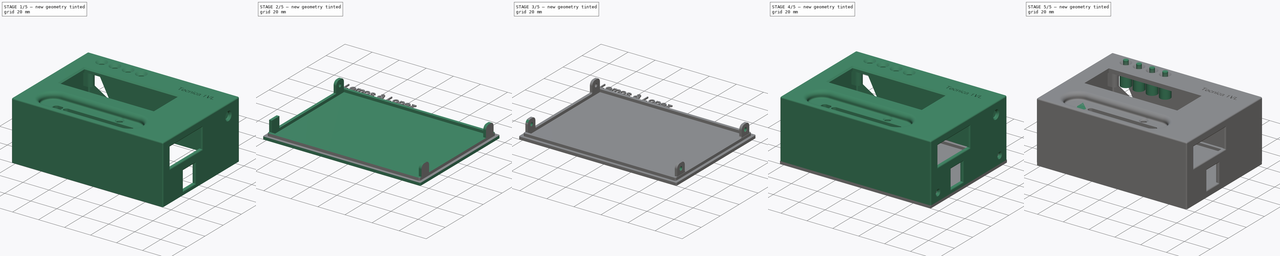
[diagram: build sequence overview — one tinted view per stage of 5, left to right]
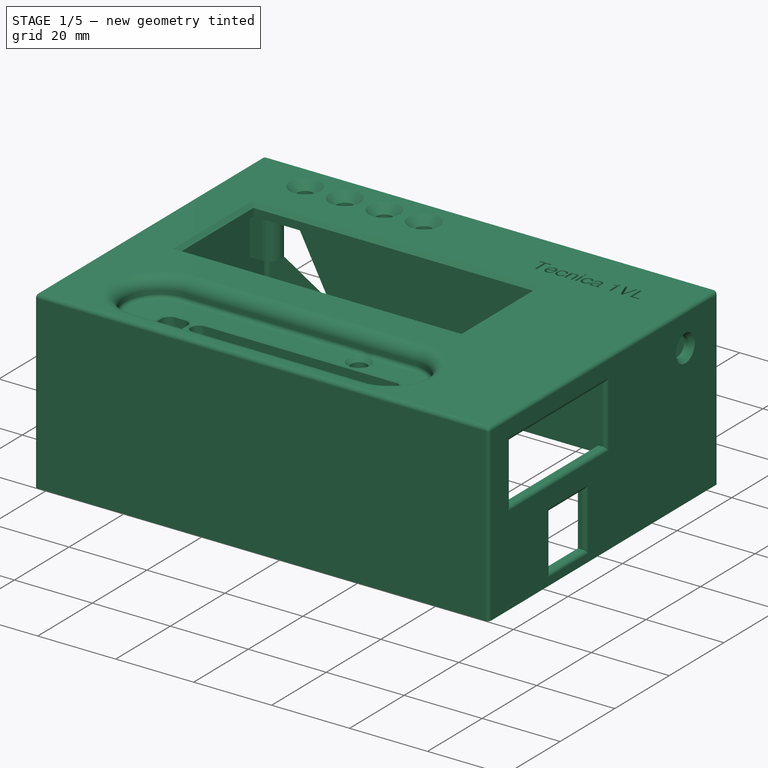
[diagram: stage 1 of 5 — iso view after this stage's code; geometry added in this stage tinted green]
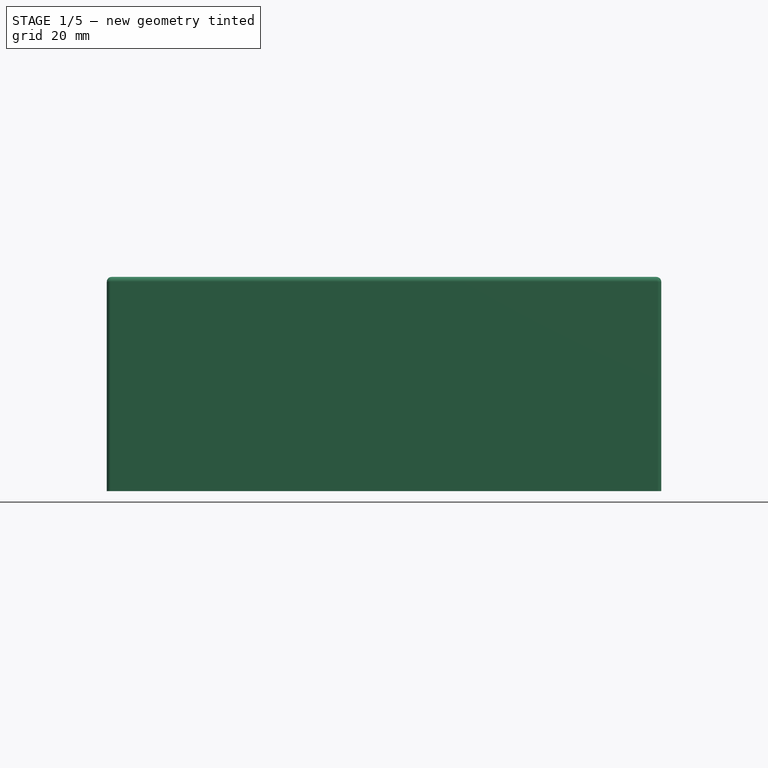
[diagram: stage 1 of 5 — front view after this stage's code; geometry added in this stage tinted green]
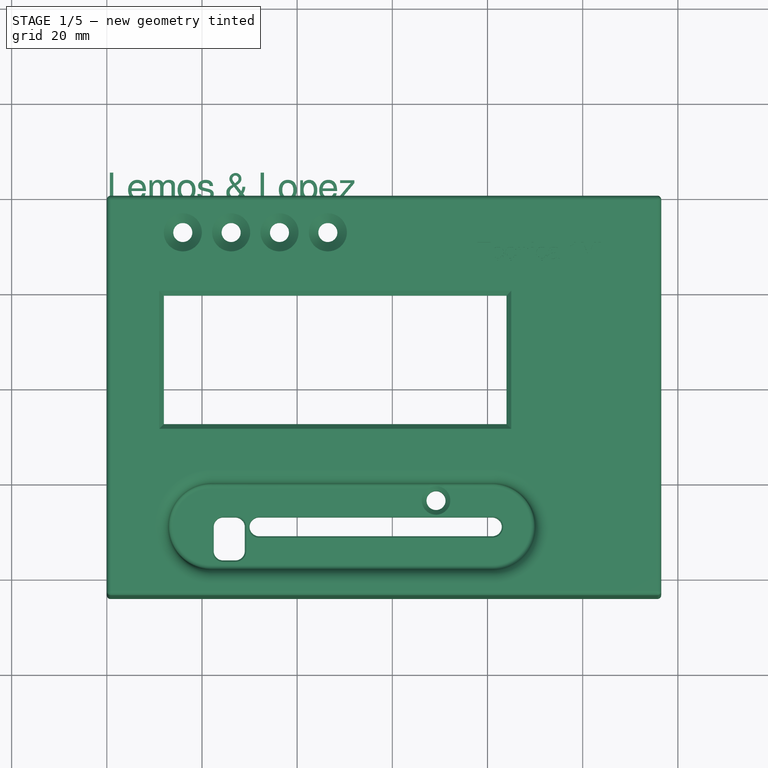
[diagram: stage 1 of 5 — top view after this stage's code; geometry added in this stage tinted green]
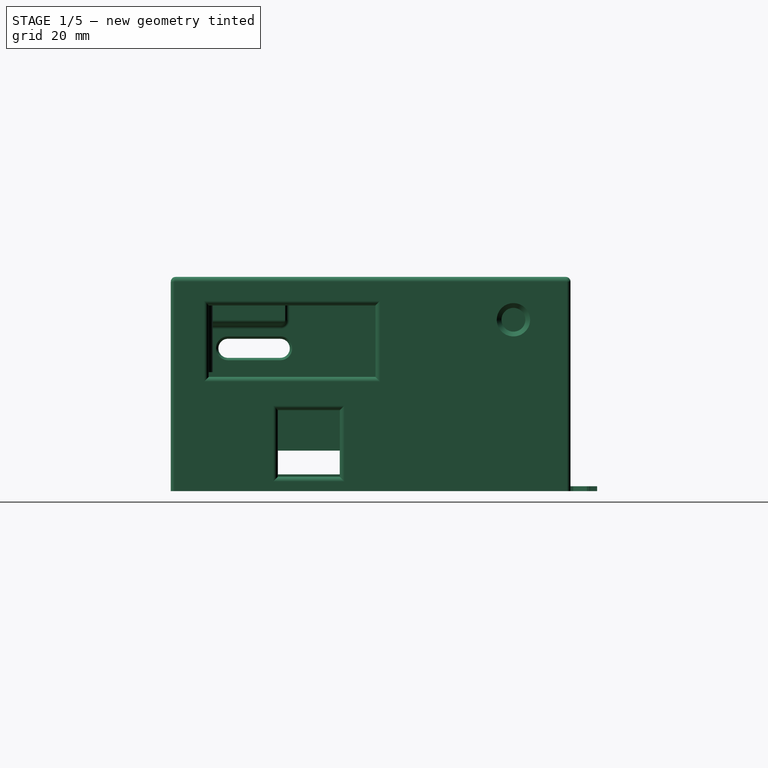
[diagram: stage 1 of 5 — right view after this stage's code; geometry added in this stage tinted green]
FCSTD DOCUMENT  (FreeCAD 0.17R7682 (Git))
Label: Modelodelgabinete5
License: All rights reserved
LicenseURL: http://en.wikipedia.org/wiki/All_rights_reserved
objects: Sketcher::SketchObject×22, PartDesign::Pocket×11, PartDesign::Pad×10, PartDesign::Chamfer×10, Part::Fillet×9, PartDesign::Fillet×8, Part::Feature×2, Part::MultiFuse×2, Part::Extrusion×2, Part::Chamfer×2, Part::Cut×2, Part::FeaturePython×1, Part::Part2DObjectPython×1, PartDesign::Body×1
note: 104 computed .brp shape members not serialized (recipe doc carries the construction recipe); baked Part::Feature solids carry a one-line shape summary decoded from their .brp

FEATURE [Part::Feature] Fusion_solid  label="Fusion (Solid)"
  shape: bbox 116.5 x 84 x 45 mm, 301 faces (baked)
FEATURE [Sketcher::SketchObject] Sketch001
  ExternalGeometry = -> [Fusion_solid]
  MapMode = 5
  Placement = pos=(0,0,40) rot=(0,0,1;0rad)
  sketch-geometry (8):
    g0: LineSegment StartX=24.46 StartY=-67.5 StartZ=0 EndX=27 EndY=-67.5 EndZ=0
    g1: LineSegment StartX=29 StartY=-69.5 StartZ=0 EndX=29 EndY=-74.58 EndZ=0
    g2: LineSegment StartX=27 StartY=-76.58 StartZ=0 EndX=24.46 EndY=-76.58 EndZ=0
    g3: LineSegment StartX=22.46 StartY=-74.58 StartZ=0 EndX=22.46 EndY=-69.5 EndZ=0
    g4: ArcOfCircle CenterX=27 CenterY=-69.5 CenterZ=0 NormalX=0 NormalY=0 NormalZ=1 Radius=2 StartAngle=0 EndAngle=1.5708
    g5: ArcOfCircle CenterX=24.46 CenterY=-69.5 CenterZ=0 NormalX=0 NormalY=0 NormalZ=1 Radius=2 StartAngle=1.5708 EndAngle=3.14159
    g6: ArcOfCircle CenterX=24.46 CenterY=-74.58 CenterZ=0 NormalX=0 NormalY=0 NormalZ=1 Radius=2 StartAngle=3.14159 EndAngle=4.71239
    g7: ArcOfCircle CenterX=27 CenterY=-74.58 CenterZ=0 NormalX=0 NormalY=0 NormalZ=1 Radius=2 StartAngle=4.71239 EndAngle=6.28319
  constraints (20):
    c: Horizontal(g0)
    c: Horizontal(g2)
    c: Vertical(g1)
    c: Vertical(g3)
    c: Tangent(g0,g4) = 1.5708
    c: Tangent(g1,g4) = 1.5708
    c: Radius(g4) = 2
    c: DistanceX(g4,g-3) = 5
    c: DistanceY(g-3,g4) = 0
    c: Tangent(g3,g5) = 1.5708
    c: Tangent(g0,g5) = 1.5708
    c: Tangent(g3,g6) = 1.5708
    c: Tangent(g2,g6) = 1.5708
    c: Tangent(g2,g7) = 1.5708
    c: Tangent(g1,g7) = 1.5708
    c: Equal(g5,g6)
    c: Equal(g6,g7)
    c: Equal(g7,g4)
    c: DistanceX(g6,g7) = 2.54
    c: DistanceY(g6,g5) = 5.08
FEATURE [PartDesign::Pocket] Pocket
  Length = 5
  Type = 0
FEATURE [PartDesign::Chamfer] Chamfer
  Base = -> Pocket [Edge134,Edge133,Edge132,Edge131]
  Size = 1
FEATURE [PartDesign::Chamfer] Chamfer001
  Base = -> Chamfer [Edge300,Edge296,Edge298,Edge301,Edge513,Edge512,Edge504,Edge315,Edge319,Edge320,Edge323,Edge324,Edge325,Edge316,Edge326]
  Size = 1
FEATURE [PartDesign::Fillet] Fillet
  Base = -> Chamfer001 [Edge49]
  Radius = 1
FEATURE [PartDesign::Chamfer] Chamfer002
  Base = -> Fillet [Edge288,Edge287,Edge286,Edge285]
  Size = 1
FEATURE [Sketcher::SketchObject] Sketch004
  ExternalGeometry = -> [Chamfer002]
  MapMode = 5
  Placement = pos=(0,0,0) rot=(0.57735,-0.57735,-0.57735;2.0944rad)
  Support = -> [Chamfer002]
  sketch-geometry (2):
    g0: LineSegment [constr] StartX=51 StartY=6 StartZ=0 EndX=31.832 EndY=6 EndZ=0
    g1: Circle CenterX=48.5 CenterY=6 CenterZ=0 NormalX=0 NormalY=0 NormalZ=1 Radius=2.5
  constraints (6):
    c: Coincident(g0,g-3)
    c: Horizontal(g0)
    c: DistanceX(g0) = -19.168
    c: PointOnObject(g1,g0)
    c: Radius(g1) = 2.5
    c: DistanceX(g1,g0) = 2.5
FEATURE [PartDesign::Pocket] Pocket001
  Length = 6
  Profile = -> Sketch004
  Type = 0
FEATURE [Sketcher::SketchObject] Sketch005
  ExternalGeometry = -> [Pocket001]
  MapMode = 5
  Placement = pos=(0,0,0) rot=(0.57735,-0.57735,-0.57735;2.0944rad)
  Support = -> [Pocket001]
  sketch-geometry (4):
    g0: LineSegment StartX=48.55 StartY=8.4995 StartZ=0 EndX=52.1442 EndY=8.4995 EndZ=0
    g1: LineSegment StartX=52.1442 StartY=8.4995 StartZ=0 EndX=52.1442 EndY=3.5005 EndZ=0
    g2: LineSegment StartX=52.1442 StartY=3.5005 StartZ=0 EndX=48.55 EndY=3.5005 EndZ=0
    g3: LineSegment StartX=48.55 StartY=3.5005 StartZ=0 EndX=48.55 EndY=8.4995 EndZ=0
  constraints (11):
    c: Coincident(g0,g1)
    c: Coincident(g1,g2)
    c: Coincident(g2,g3)
    c: Coincident(g3,g0)
    c: Horizontal(g0)
    c: Horizontal(g2)
    c: Vertical(g1)
    c: Vertical(g3)
    c: Coincident(g0,g-3)
    c: Coincident(g2,g-3)
    c: DistanceX(g2,g2) = 3.59415
FEATURE [PartDesign::Pocket] Pocket002
  Length = 5
  Profile = -> Sketch005
  Type = 0
FEATURE [Part::Fillet] Fillet001
  Base = -> Pocket002
  Edges = 1 edges r=0.5: [Edge476]
FEATURE [Sketcher::SketchObject] Sketch006
  ExternalGeometry = -> [Fillet001]
  MapMode = 5
  Placement = pos=(114.5,0,0) rot=(0.57735,-0.57735,-0.57735;2.0944rad)
  Support = -> [Fillet001]
  sketch-geometry (1):
    g0: Circle CenterX=12 CenterY=36 CenterZ=0 NormalX=0 NormalY=0 NormalZ=1 Radius=2.5
  constraints (3):
    c: DistanceY(g0,g-3) = 5
    c: Radius(g0) = 2.5
    c: DistanceX(g-1,g0) = 12
FEATURE [PartDesign::Pocket] Pocket003
  Length = 5
  Profile = -> Sketch006
  Type = 0
FEATURE [PartDesign::Chamfer] Chamfer003  label="Caja"
  Base = -> Pocket003 [Edge255]
  Size = 1
FEATURE [Part::Part2DObjectPython] ShapeString  # Draft 2D object (typed FeaturePython)
  FontFile = <path>
  Size = 3
  String = Lemos & Lopez
  Tracking = 0
FEATURE [Part::Extrusion] Extrude001
  Base = -> ShapeString
  Dir = (0,0,1)
  Solid = true
FEATURE [PartDesign::Body] Body
  BaseFeature = -> Extrude001
  Origin = -> BodyOrigin
  Placement = pos=(32,-13,0.7) rot=(0,0,1;0rad)
  Tip = -> Extrude001
note: 1 file-system path scrubbed to <path> (originals preserved in the JSON sidecar)
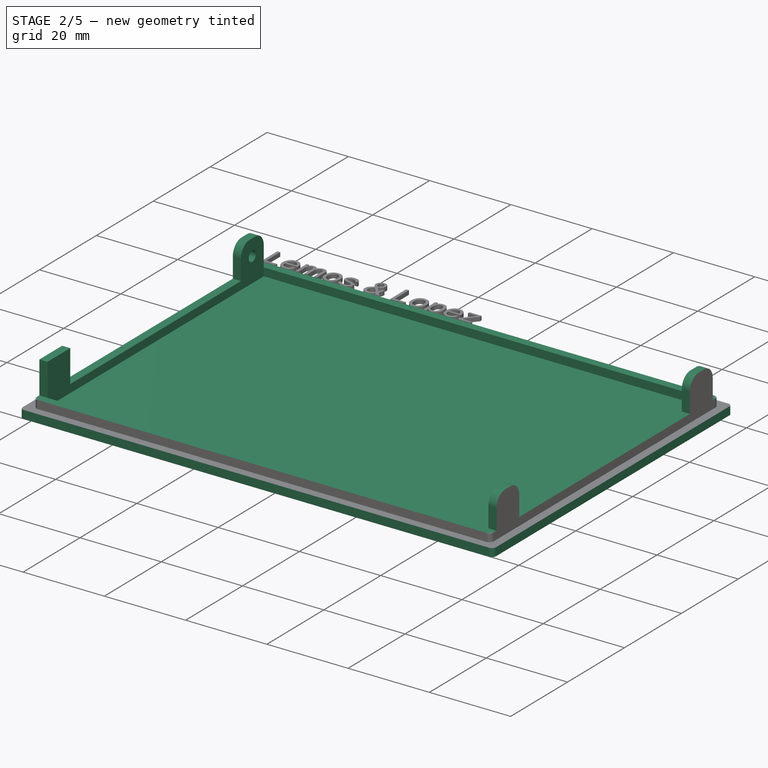
[diagram: stage 2 of 5 — iso view after this stage's code; geometry added in this stage tinted green]
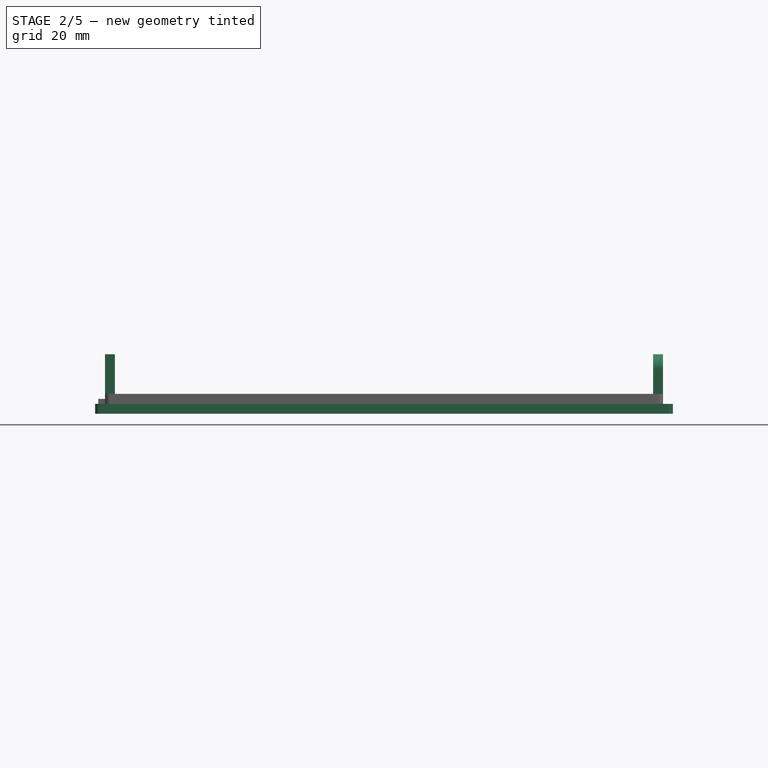
[diagram: stage 2 of 5 — front view after this stage's code; geometry added in this stage tinted green]
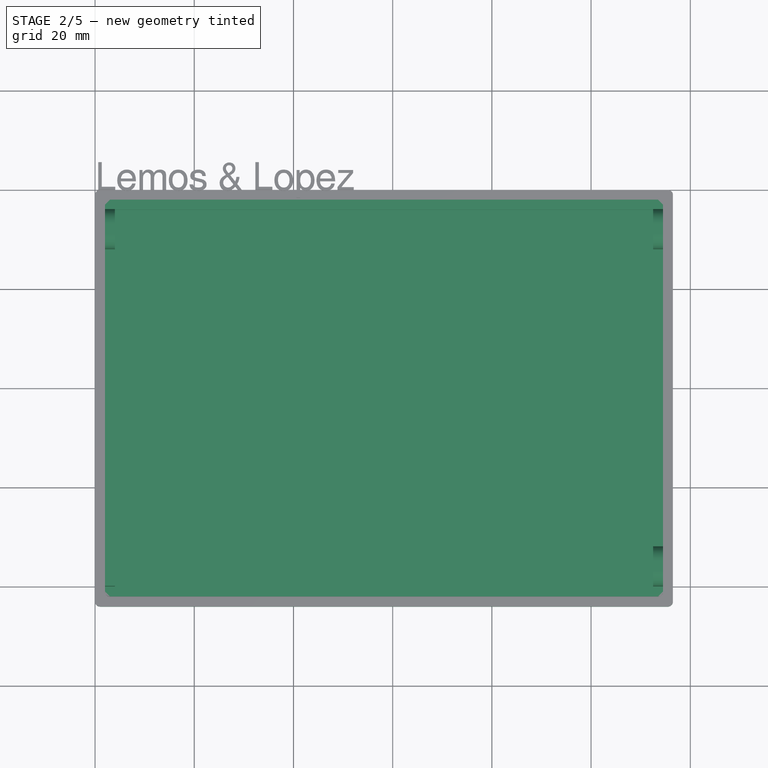
[diagram: stage 2 of 5 — top view after this stage's code; geometry added in this stage tinted green]
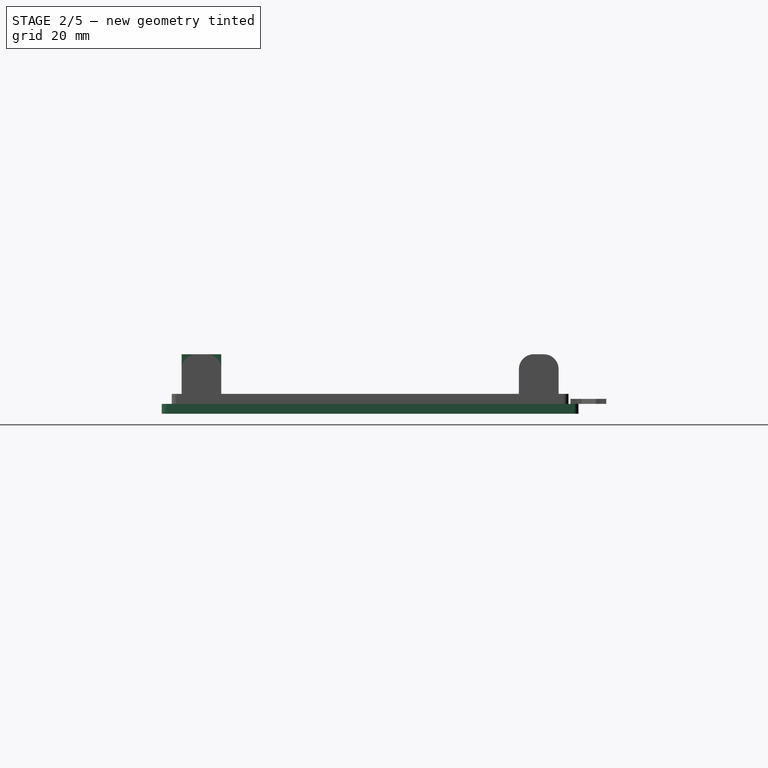
[diagram: stage 2 of 5 — right view after this stage's code; geometry added in this stage tinted green]
FEATURE [Sketcher::SketchObject] Sketch007
  ExternalGeometry = -> [Chamfer003]
  Placement = pos=(0,0,0) rot=(1,0,0;3.14159rad)
  sketch-geometry (4):
    g0: LineSegment StartX=0 StartY=0 StartZ=0 EndX=116.5 EndY=0 EndZ=0
    g1: LineSegment StartX=116.5 StartY=0 StartZ=0 EndX=116.5 EndY=84 EndZ=0
    g2: LineSegment StartX=116.5 StartY=84 StartZ=0 EndX=0 EndY=84 EndZ=0
    g3: LineSegment StartX=0 StartY=84 StartZ=0 EndX=0 EndY=0 EndZ=0
  constraints (11):
    c: Coincident(g0,g1)
    c: Coincident(g1,g2)
    c: Coincident(g2,g3)
    c: Coincident(g3,g0)
    c: Horizontal(g0)
    c: Horizontal(g2)
    c: Vertical(g1)
    c: Vertical(g3)
    c: Coincident(g0,g-1)
    c: PointOnObject(g-3,g2)
    c: PointOnObject(g-4,g1)
FEATURE [PartDesign::Pad] Pad002
  Length = 2
  Length2 = 100
  Placement = pos=(0,0,0) rot=(1,0,0;3.14159rad)
  Profile = -> Sketch007
  Type = 0
FEATURE [Sketcher::SketchObject] Sketch008
  ExternalGeometry = -> [Pad002]
  MapMode = 5
  Support = -> [Pad002]
  sketch-geometry (4):
    g0: LineSegment StartX=2 StartY=-2 StartZ=0 EndX=114.5 EndY=-2 EndZ=0
    g1: LineSegment StartX=114.5 StartY=-2 StartZ=0 EndX=114.5 EndY=-82 EndZ=0
    g2: LineSegment StartX=114.5 StartY=-82 StartZ=0 EndX=2 EndY=-82 EndZ=0
    g3: LineSegment StartX=2 StartY=-82 StartZ=0 EndX=2 EndY=-2 EndZ=0
  constraints (12):
    c: Coincident(g0,g1)
    c: Coincident(g1,g2)
    c: Coincident(g2,g3)
    c: Coincident(g3,g0)
    c: Horizontal(g0)
    c: Horizontal(g2)
    c: Vertical(g1)
    c: Vertical(g3)
    c: DistanceX(g-1,g0) = 2
    c: DistanceY(g0,g-1) = 2
    c: DistanceX(g1,g-3) = 2
    c: DistanceY(g-3,g1) = 2
FEATURE [PartDesign::Pad] Pad003
  Length = 2
  Length2 = 100
  Placement = pos=(0,0,0) rot=(1,0,0;3.14159rad)
  Profile = -> Sketch008
  Type = 0
FEATURE [Sketcher::SketchObject] Sketch009
  ExternalGeometry = -> [Pad003]
  MapMode = 5
  Placement = pos=(0,0,2) rot=(0,0,1;0rad)
  Support = -> [Pad003]
  sketch-geometry (4):
    g0: LineSegment StartX=4 StartY=-4 StartZ=0 EndX=112.5 EndY=-4 EndZ=0
    g1: LineSegment StartX=112.5 StartY=-4 StartZ=0 EndX=112.5 EndY=-80 EndZ=0
    g2: LineSegment StartX=112.5 StartY=-80 StartZ=0 EndX=4 EndY=-80 EndZ=0
    g3: LineSegment StartX=4 StartY=-80 StartZ=0 EndX=4 EndY=-4 EndZ=0
  constraints (12):
    c: Coincident(g0,g1)
    c: Coincident(g1,g2)
    c: Coincident(g2,g3)
    c: Coincident(g3,g0)
    c: Horizontal(g0)
    c: Horizontal(g2)
    c: Vertical(g1)
    c: Vertical(g3)
    c: DistanceX(g1,g-3) = 2
    c: DistanceY(g-3,g1) = 2
    c: DistanceX(g-1,g0) = 4
    c: DistanceY(g0,g-1) = 4
FEATURE [PartDesign::Pocket] Pocket004
  Length = 2
  Placement = pos=(0,0,0) rot=(1,0,0;3.14159rad)
  Profile = -> Sketch009
  Type = 0
FEATURE [Part::Fillet] Fillet008
  Base = -> Pocket004
  Edges = 8 edges r=1: [Edge1,Edge2,Edge5,Edge8,Edge17,Edge19,Edge20,Edge22]
FEATURE [Sketcher::SketchObject] Sketch010
  ExternalGeometry = -> [Fillet008]
  MapMode = 5
  Placement = pos=(0,0,2) rot=(0,0,1;0rad)
  Support = -> [Fillet008]
  sketch-geometry (4):
    g0: LineSegment StartX=2 StartY=-4 StartZ=0 EndX=4 EndY=-4 EndZ=0
    g1: LineSegment StartX=4 StartY=-4 StartZ=0 EndX=4 EndY=-12 EndZ=0
    g2: LineSegment StartX=4 StartY=-12 StartZ=0 EndX=2 EndY=-12 EndZ=0
    g3: LineSegment StartX=2 StartY=-12 StartZ=0 EndX=2 EndY=-4 EndZ=0
  constraints (11):
    c: Coincident(g0,g1)
    c: Coincident(g1,g2)
    c: Coincident(g2,g3)
    c: Coincident(g3,g0)
    c: Horizontal(g0)
    c: Horizontal(g2)
    c: Vertical(g1)
    c: Vertical(g3)
    c: Coincident(g0,g-3)
    c: DistanceY(g3,g3) = 8
    c: DistanceX(g0,g0) = 2
FEATURE [PartDesign::Pad] Pad004
  Length = 8
  Length2 = 100
  Profile = -> Sketch010
  Type = 0
FEATURE [PartDesign::Fillet] Fillet010
  Base = -> Pad004 [Edge1,Edge3]
  Radius = 3
FEATURE [Sketcher::SketchObject] Sketch011
  ExternalGeometry = -> [Fillet010]
  MapMode = 5
  Placement = pos=(2,0,0) rot=(0.57735,-0.57735,-0.57735;2.0944rad)
  Support = -> [Fillet010]
  sketch-geometry (1):
    g0: Circle CenterX=8 CenterY=6 CenterZ=0 NormalX=0 NormalY=0 NormalZ=1 Radius=1.25
  constraints (3):
    c: Radius(g0) = 1.25
    c: DistanceY(g0,g-3) = 1
    c: DistanceX(g-3,g0) = 4
FEATURE [PartDesign::Pocket] Pocket005
  Length = 5
  Profile = -> Sketch011
  Type = 2
FEATURE [Sketcher::SketchObject] Sketch012
  ExternalGeometry = -> [Pocket005]
  MapMode = 5
  Placement = pos=(0,0,2) rot=(0,0,1;0rad)
  Support = -> [Pocket005]
  sketch-geometry (4):
    g0: LineSegment StartX=2 StartY=-80 StartZ=0 EndX=4 EndY=-80 EndZ=0
    g1: LineSegment StartX=4 StartY=-80 StartZ=0 EndX=4 EndY=-72 EndZ=0
    g2: LineSegment StartX=4 StartY=-72 StartZ=0 EndX=2 EndY=-72 EndZ=0
    g3: LineSegment StartX=2 StartY=-72 StartZ=0 EndX=2 EndY=-80 EndZ=0
  constraints (11):
    c: Coincident(g0,g1)
    c: Coincident(g1,g2)
    c: Coincident(g2,g3)
    c: Coincident(g3,g0)
    c: Horizontal(g0)
    c: Horizontal(g2)
    c: Vertical(g1)
    c: Vertical(g3)
    c: DistanceY(g1,g1) = 8
    c: DistanceX(g2,g2) = 2
    c: Coincident(g0,g-3)
FEATURE [PartDesign::Pad] Pad005
  Length = 8
  Length2 = 100
  Profile = -> Sketch012
  Type = 0
FEATURE [Sketcher::SketchObject] Sketch013
  ExternalGeometry = -> [Pad005]
  MapMode = 5
  Placement = pos=(0,0,2) rot=(0,0,1;0rad)
  Support = -> [Pad005]
  sketch-geometry (4):
    g0: LineSegment StartX=112.5 StartY=-4 StartZ=0 EndX=114.5 EndY=-4 EndZ=0
    g1: LineSegment StartX=114.5 StartY=-4 StartZ=0 EndX=114.5 EndY=-12 EndZ=0
    g2: LineSegment StartX=114.5 StartY=-12 StartZ=0 EndX=112.5 EndY=-12 EndZ=0
    g3: LineSegment StartX=112.5 StartY=-12 StartZ=0 EndX=112.5 EndY=-4 EndZ=0
  constraints (11):
    c: Coincident(g0,g1)
    c: Coincident(g1,g2)
    c: Coincident(g2,g3)
    c: Coincident(g3,g0)
    c: Horizontal(g0)
    c: Horizontal(g2)
    c: Vertical(g1)
    c: Vertical(g3)
    c: DistanceY(g1,g1) = 8
    c: DistanceX(g2,g2) = 2
    c: Coincident(g0,g-3)
FEATURE [PartDesign::Pad] Pad006
  Length = 8
  Length2 = 100
  Profile = -> Sketch013
  Type = 0
FEATURE [Sketcher::SketchObject] Sketch014
  ExternalGeometry = -> [Pad006]
  MapMode = 5
  Placement = pos=(0,0,2) rot=(0,0,1;0rad)
  Support = -> [Pad006]
  sketch-geometry (4):
    g0: LineSegment StartX=114.5 StartY=-80 StartZ=0 EndX=112.5 EndY=-80 EndZ=0
    g1: LineSegment StartX=112.5 StartY=-80 StartZ=0 EndX=112.5 EndY=-72 EndZ=0
    g2: LineSegment StartX=112.5 StartY=-72 StartZ=0 EndX=114.5 EndY=-72 EndZ=0
    g3: LineSegment StartX=114.5 StartY=-72 StartZ=0 EndX=114.5 EndY=-80 EndZ=0
  constraints (11):
    c: Coincident(g0,g1)
    c: Coincident(g1,g2)
    c: Coincident(g2,g3)
    c: Coincident(g3,g0)
    c: Horizontal(g0)
    c: Horizontal(g2)
    c: Vertical(g1)
    c: Vertical(g3)
    c: DistanceY(g3,g3) = 8
    c: DistanceX(g0,g0) = 2
    c: Coincident(g0,g-3)
FEATURE [PartDesign::Pad] Pad007
  Length = 8
  Length2 = 100
  Profile = -> Sketch014
  Type = 0
FEATURE [PartDesign::Fillet] Fillet011
  Base = -> Pad007 [Edge121,Edge108]
  Radius = 3
FEATURE [PartDesign::Fillet] Fillet012
  Base = -> Fillet011 [Edge116,Edge99]
  Radius = 3
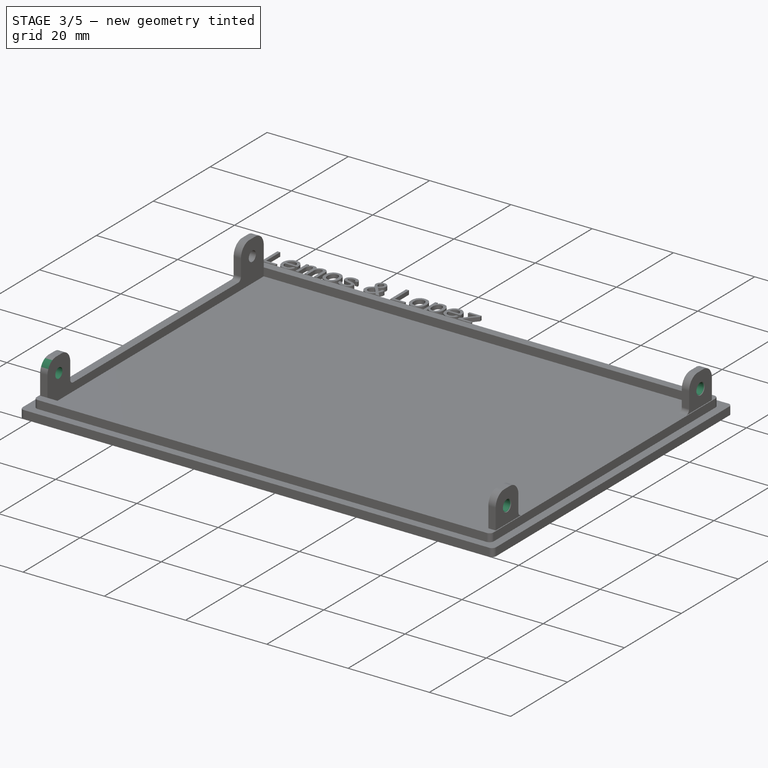
[diagram: stage 3 of 5 — iso view after this stage's code; geometry added in this stage tinted green]
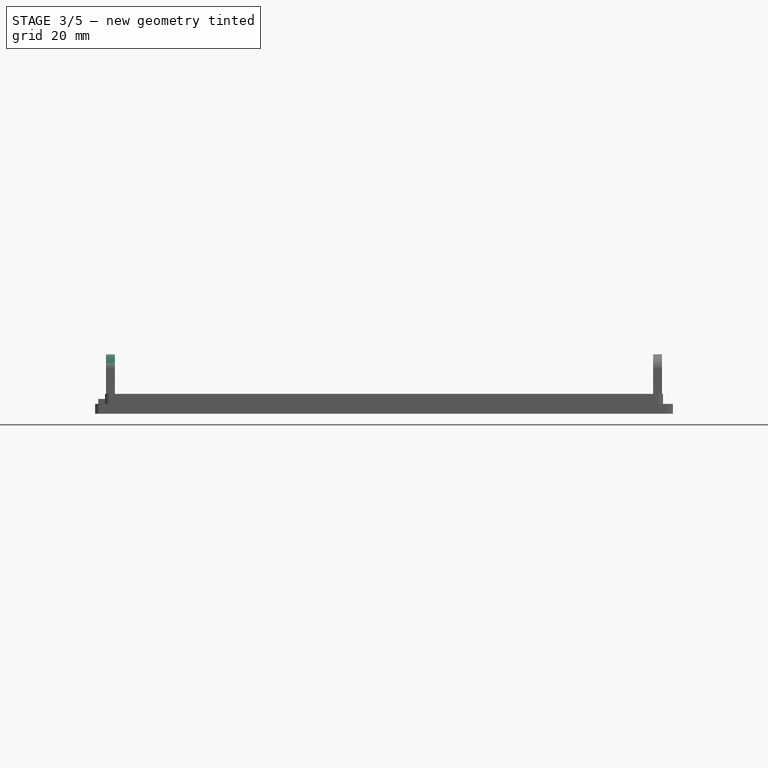
[diagram: stage 3 of 5 — front view after this stage's code; geometry added in this stage tinted green]
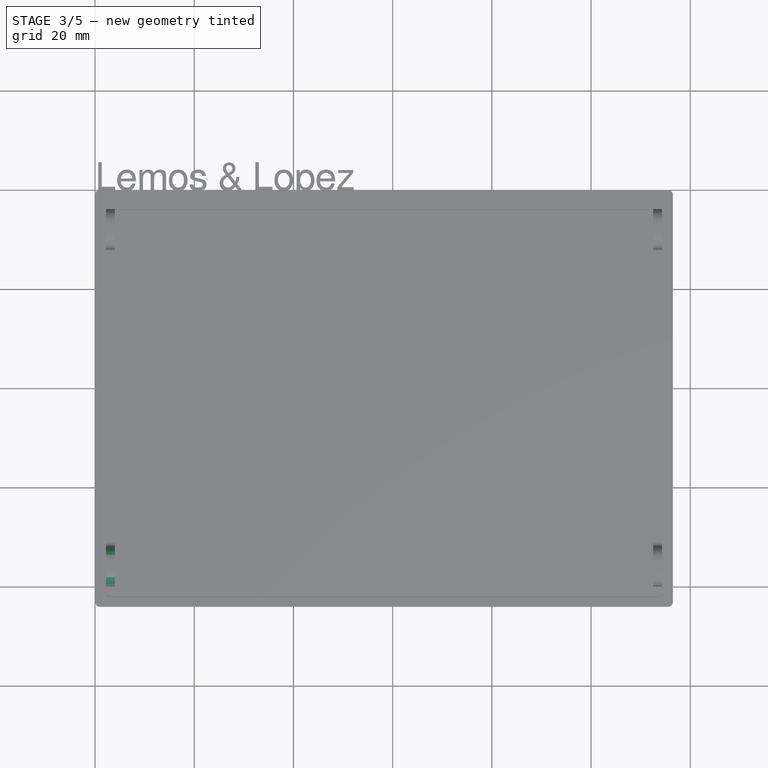
[diagram: stage 3 of 5 — top view after this stage's code; geometry added in this stage tinted green]
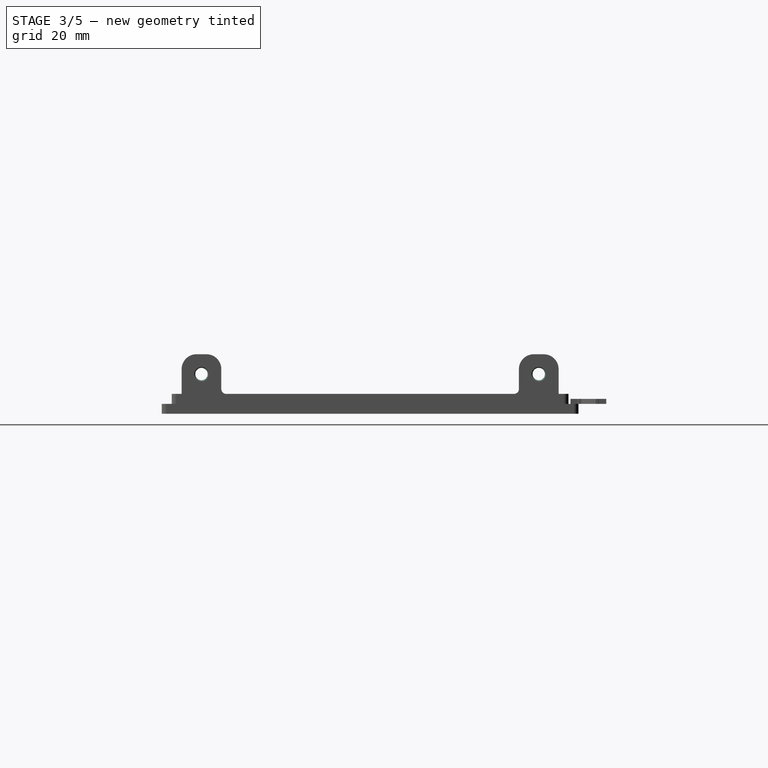
[diagram: stage 3 of 5 — right view after this stage's code; geometry added in this stage tinted green]
FEATURE [PartDesign::Fillet] Fillet013
  Base = -> Fillet012 [Edge129,Edge96]
  Radius = 3
FEATURE [Sketcher::SketchObject] Sketch015
  ExternalGeometry = -> [Fillet013]
  MapMode = 5
  Placement = pos=(2,0,0) rot=(0.57735,-0.57735,-0.57735;2.0944rad)
  Support = -> [Fillet013]
  sketch-geometry (1):
    g0: Circle CenterX=76 CenterY=6 CenterZ=0 NormalX=0 NormalY=0 NormalZ=1 Radius=1.25
  constraints (3):
    c: Radius(g0) = 1.25
    c: DistanceY(g0,g-3) = 1
    c: DistanceX(g-3,g0) = 4
FEATURE [PartDesign::Pocket] Pocket006
  Length = 5
  Profile = -> Sketch015
  Type = 0
FEATURE [Sketcher::SketchObject] Sketch016
  ExternalGeometry = -> [Pocket006]
  MapMode = 5
  Placement = pos=(114.5,0,0) rot=(0.57735,0.57735,0.57735;2.0944rad)
  Support = -> [Pocket006]
  sketch-geometry (1):
    g0: Circle CenterX=-76 CenterY=6 CenterZ=0 NormalX=0 NormalY=0 NormalZ=1 Radius=1.25
  constraints (3):
    c: Radius(g0) = 1.25
    c: DistanceX(g-3,g0) = 4
    c: DistanceY(g0,g-3) = 1
FEATURE [PartDesign::Pocket] Pocket007
  Length = 5
  Profile = -> Sketch016
  Type = 0
FEATURE [Sketcher::SketchObject] Sketch017
  ExternalGeometry = -> [Pocket007]
  MapMode = 5
  Placement = pos=(114.5,0,0) rot=(0.57735,0.57735,0.57735;2.0944rad)
  Support = -> [Pocket007]
  sketch-geometry (1):
    g0: Circle CenterX=-8 CenterY=6 CenterZ=0 NormalX=0 NormalY=0 NormalZ=1 Radius=1.25
  constraints (3):
    c: Radius(g0) = 1.25
    c: DistanceX(g-3,g0) = 4
    c: DistanceY(g-3,g0) = -1
FEATURE [PartDesign::Pocket] Pocket008
  Length = 5
  Profile = -> Sketch017
  Type = 0
FEATURE [PartDesign::Fillet] Fillet014
  Base = -> Pocket008 [Edge94]
  Radius = 1
FEATURE [PartDesign::Fillet] Fillet015
  Base = -> Fillet014 [Edge140,Edge141]
  Radius = 1
FEATURE [PartDesign::Fillet] Fillet016
  Base = -> Fillet015 [Edge128]
  Radius = 1
FEATURE [Sketcher::SketchObject] Sketch018
  ExternalGeometry = -> [Fillet016]
  MapMode = 5
  Placement = pos=(2,0,0) rot=(0.57735,-0.57735,-0.57735;2.0944rad)
  Support = -> [Fillet016]
  sketch-geometry (4):
    g0: LineSegment StartX=-1.3547 StartY=15.4224 StartZ=0 EndX=87.2109 EndY=15.4224 EndZ=0
    g1: LineSegment StartX=87.2109 StartY=15.4224 StartZ=0 EndX=87.2109 EndY=2 EndZ=0
    g2: LineSegment StartX=87.2109 StartY=2 StartZ=0 EndX=-1.3547 EndY=2 EndZ=0
    g3: LineSegment StartX=-1.3547 StartY=2 StartZ=0 EndX=-1.3547 EndY=15.4224 EndZ=0
  constraints (12):
    c: Coincident(g0,g1)
    c: Coincident(g1,g2)
    c: Coincident(g2,g3)
    c: Coincident(g3,g0)
    c: Horizontal(g0)
    c: Horizontal(g2)
    c: Vertical(g1)
    c: Vertical(g3)
    c: PointOnObject(g-3,g2)
    c: DistanceX(g0,g0) = 88.5656
    c: DistanceY(g1,g1) = 13.4224
    c: DistanceX(g-3,g1) = 16.2109
FEATURE [PartDesign::Pocket] Pocket009
  Length = 0.2
  Profile = -> Sketch018
  Type = 0
FEATURE [Sketcher::SketchObject] Sketch019
  ExternalGeometry = -> [Pocket009]
  MapMode = 5
  Placement = pos=(114.5,0,0) rot=(0.57735,0.57735,0.57735;2.0944rad)
  Support = -> [Pocket009]
  sketch-geometry (4):
    g0: LineSegment StartX=-81 StartY=2 StartZ=0 EndX=4.956 EndY=2 EndZ=0
    g1: LineSegment StartX=4.956 StartY=2 StartZ=0 EndX=4.956 EndY=11.716 EndZ=0
    g2: LineSegment StartX=4.956 StartY=11.716 StartZ=0 EndX=-81 EndY=11.716 EndZ=0
    g3: LineSegment StartX=-81 StartY=11.716 StartZ=0 EndX=-81 EndY=2 EndZ=0
  constraints (11):
    c: Coincident(g0,g1)
    c: Coincident(g1,g2)
    c: Coincident(g2,g3)
    c: Coincident(g3,g0)
    c: Horizontal(g0)
    c: Horizontal(g2)
    c: Vertical(g1)
    c: Vertical(g3)
    c: Coincident(g0,g-3)
    c: DistanceX(g2,g2) = 85.956
    c: DistanceY(g1,g1) = 9.716
FEATURE [PartDesign::Pocket] Pocket010
  Length = 0.2
  Profile = -> Sketch019
  Type = 0
FEATURE [PartDesign::Chamfer] Chamfer006
  Base = -> Pocket010 [Edge57]
  Size = 0.2
FEATURE [PartDesign::Chamfer] Chamfer007
  Base = -> Chamfer006 [Edge97]
  Size = 0.2
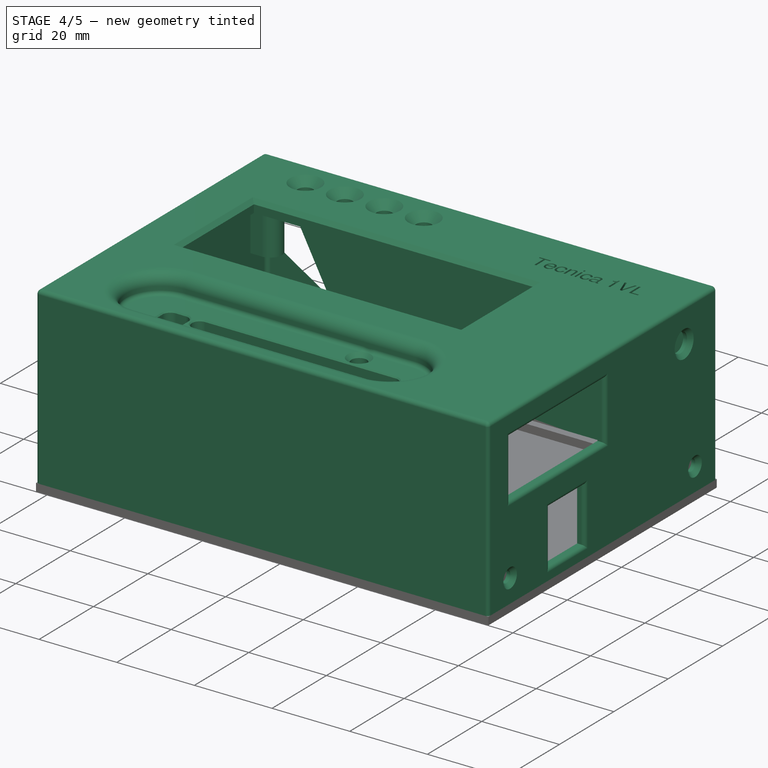
[diagram: stage 4 of 5 — iso view after this stage's code; geometry added in this stage tinted green]
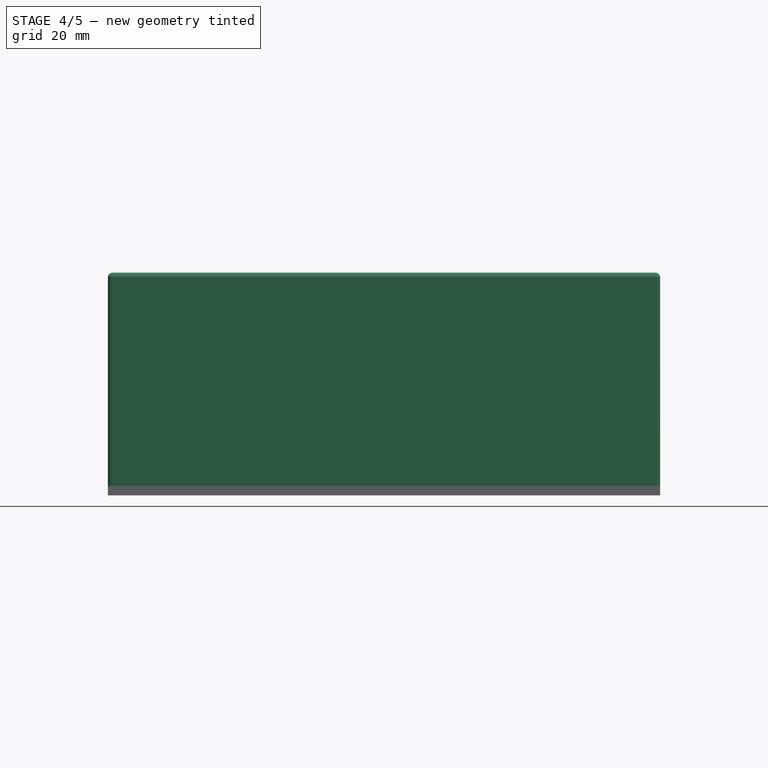
[diagram: stage 4 of 5 — front view after this stage's code; geometry added in this stage tinted green]
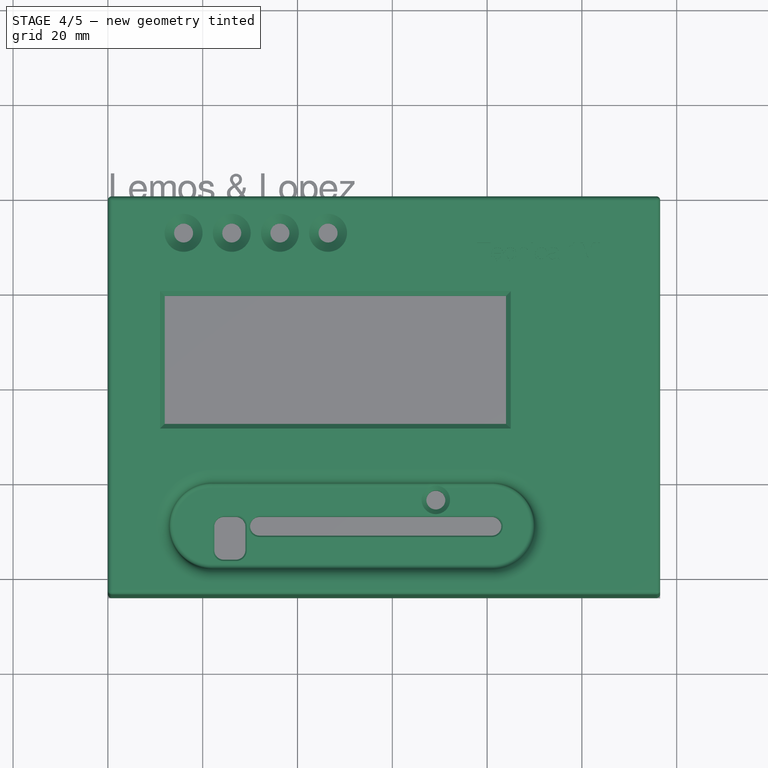
[diagram: stage 4 of 5 — top view after this stage's code; geometry added in this stage tinted green]
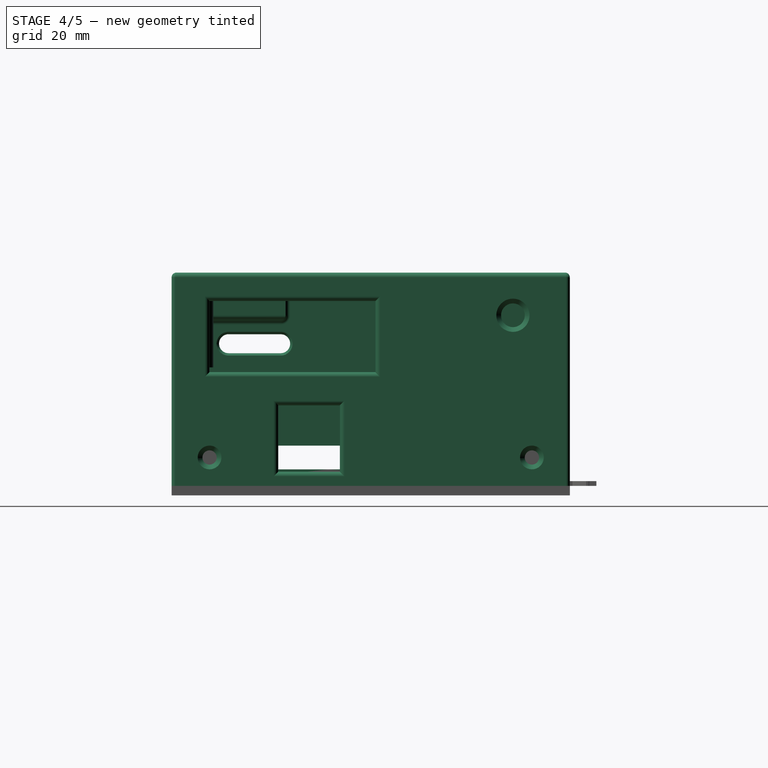
[diagram: stage 4 of 5 — right view after this stage's code; geometry added in this stage tinted green]
FEATURE [Part::Chamfer] Chamfer004
  Base = -> Pocket004
  Edges = 4 edges r=1: [Edge25,Edge26,Edge27,Edge28]
FEATURE [Part::Fillet] Fillet002
  Base = -> Chamfer004
  Edges = 4 edges r=0.5: [Edge5,Edge6,Edge7,Edge8]
FEATURE [Part::Fillet] Fillet009
  Base = -> Fillet008
  Edges = 1 edges r=1: [Edge48]
FEATURE [Part::Chamfer] Chamfer005
  Base = -> Pad007
  Edges = 1 edges r=0.5: [Edge70]
FEATURE [PartDesign::Chamfer] Chamfer008
  Base = -> Chamfer007 [Edge146,Edge189,Edge183,Edge154]
  Size = 0.2
FEATURE [PartDesign::Chamfer] Chamfer009  label="Tapa"
  Base = -> Chamfer008 [Edge158,Edge182]
  Size = 0.2
FEATURE [Sketcher::SketchObject] Sketch020
  ExternalGeometry = -> [Chamfer009]
  Placement = pos=(0,0,0) rot=(0.57735,0.57735,0.57735;2.0944rad)
  sketch-geometry (1):
    g0: Circle CenterX=-8 CenterY=6 CenterZ=0 NormalX=0 NormalY=0 NormalZ=1 Radius=1.5
  constraints (2):
    c: Coincident(g0,g-3)
    c: Radius(g0) = 1.5
FEATURE [PartDesign::Pad] Pad008
  Length = 122
  Length2 = 100
  Placement = pos=(0,0,0) rot=(0.57735,0.57735,0.57735;2.0944rad)
  Profile = -> Sketch020
  Type = 0
FEATURE [Part::Cut] Cut
  Base = -> Chamfer003
  Tool = -> Pad008
FEATURE [Sketcher::SketchObject] Sketch021
  ExternalGeometry = -> [Chamfer009]
  Placement = pos=(0,0,0) rot=(0.57735,0.57735,0.57735;2.0944rad)
  sketch-geometry (1):
    g0: Circle CenterX=-76 CenterY=6 CenterZ=0 NormalX=0 NormalY=0 NormalZ=1 Radius=1.5
  constraints (2):
    c: Coincident(g0,g-3)
    c: Radius(g0) = 1.5
FEATURE [PartDesign::Pad] Pad009
  Length = 120
  Length2 = 100
  Placement = pos=(0,0,0) rot=(0.57735,0.57735,0.57735;2.0944rad)
  Profile = -> Sketch021
  Type = 0
FEATURE [Part::Cut] Cut001
  Base = -> Cut
  Tool = -> Pad009
FEATURE [PartDesign::Chamfer] Chamfer010
  Base = -> Cut001 [Edge10,Edge15]
  Size = 1
FEATURE [PartDesign::Chamfer] Chamfer011
  Base = -> Chamfer010 [Edge222,Edge231]
  Size = 1
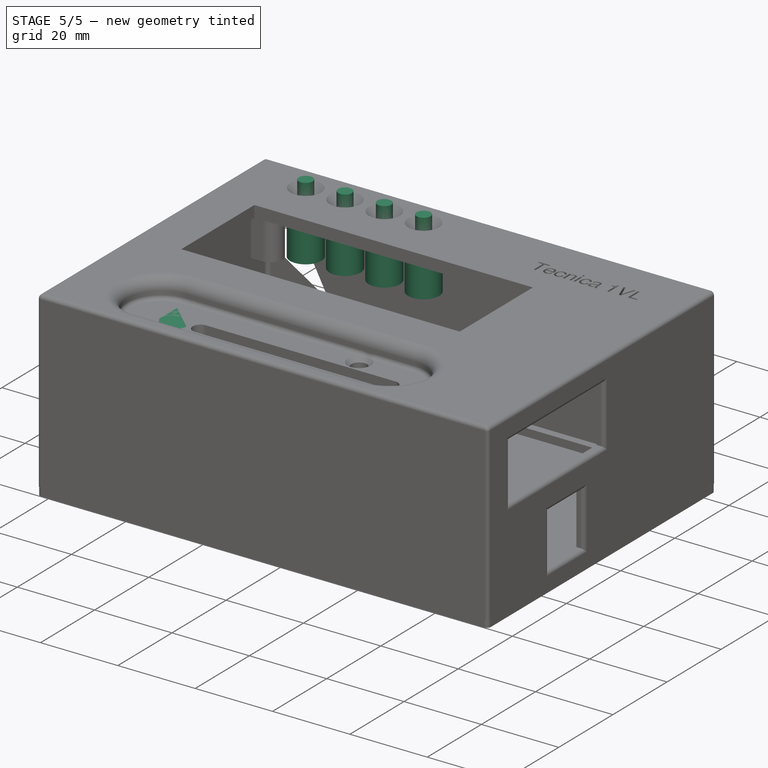
[diagram: stage 5 of 5 — iso view after this stage's code; geometry added in this stage tinted green]
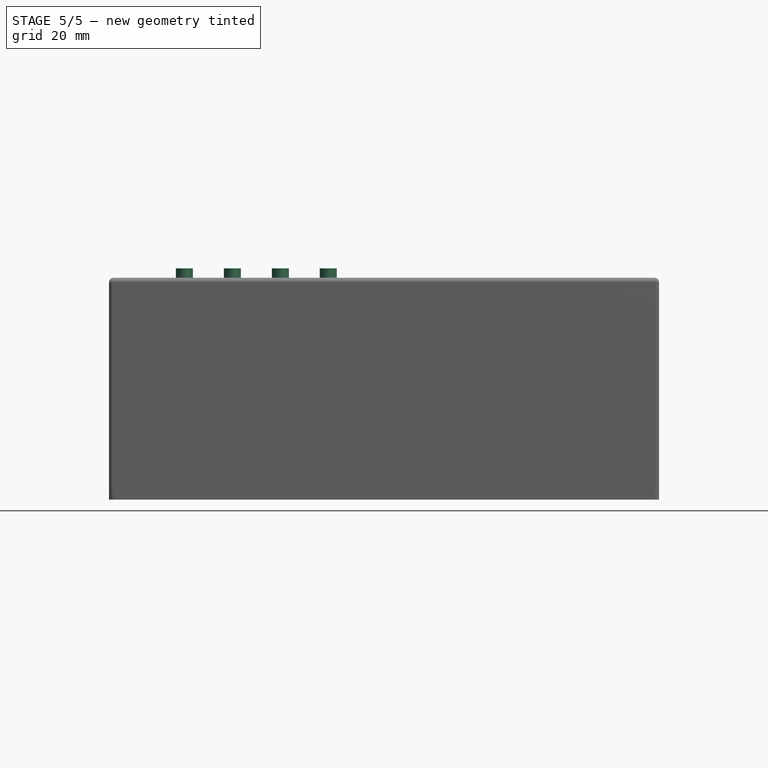
[diagram: stage 5 of 5 — front view after this stage's code; geometry added in this stage tinted green]
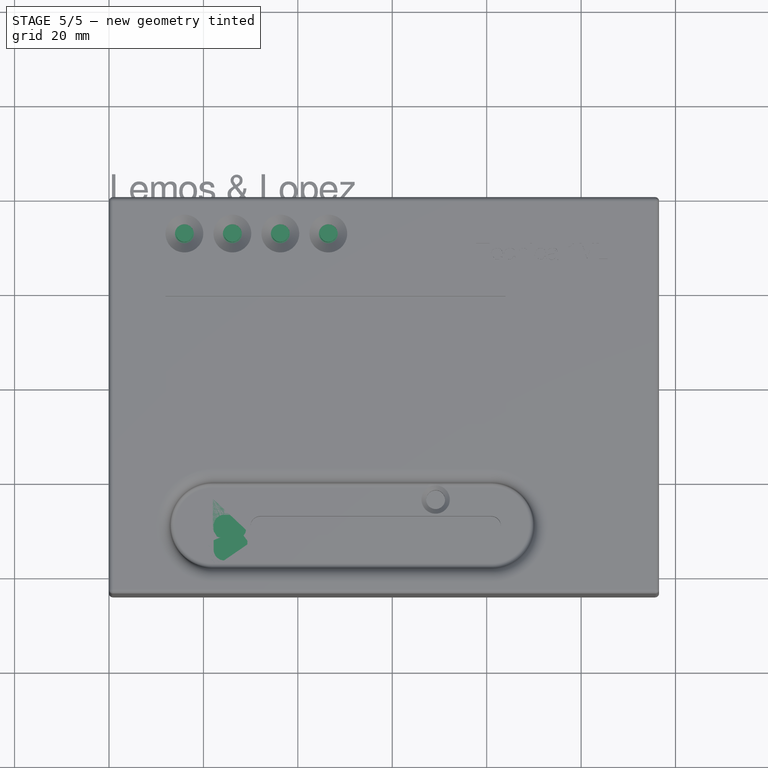
[diagram: stage 5 of 5 — top view after this stage's code; geometry added in this stage tinted green]
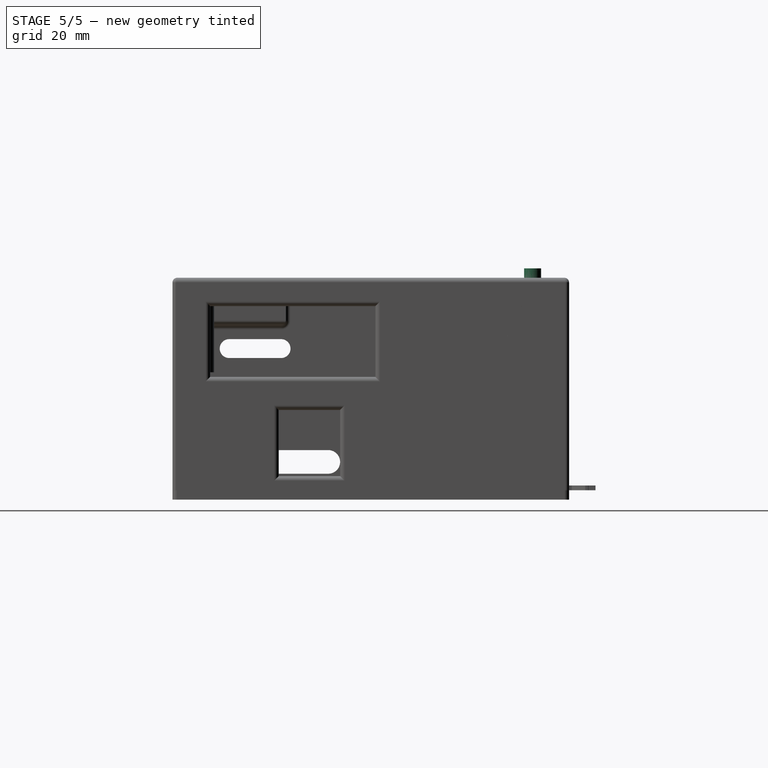
[diagram: stage 5 of 5 — right view after this stage's code; geometry added in this stage tinted green]
FEATURE [Part::Feature] Fillet013_solid  label="Fillet013 (Solid)"
  shape: bbox 116.5 x 84 x 45 mm, 305 faces (baked)
FEATURE [Sketcher::SketchObject] Sketch
  MapMode = 5
  Placement = pos=(0,0,40) rot=(0,0,1;0rad)
  sketch-geometry (4):
    g0: LineSegment StartX=20.6537 StartY=-61.1494 StartZ=0 EndX=29.6911 EndY=-61.1494 EndZ=0
    g1: LineSegment StartX=29.6911 StartY=-61.1494 StartZ=0 EndX=29.6911 EndY=-73.2278 EndZ=0
    g2: LineSegment StartX=29.6911 StartY=-73.2278 StartZ=0 EndX=20.6537 EndY=-73.2278 EndZ=0
    g3: LineSegment StartX=20.6537 StartY=-73.2278 StartZ=0 EndX=20.6537 EndY=-61.1494 EndZ=0
  constraints (12):
    c: Coincident(g0,g1)
    c: Coincident(g1,g2)
    c: Coincident(g2,g3)
    c: Coincident(g3,g0)
    c: Horizontal(g0)
    c: Horizontal(g2)
    c: Vertical(g1)
    c: Vertical(g3)
    c: DistanceX(g0,g0) = 9.03739
    c: DistanceY(g1,g1) = 12.0784
    c: DistanceY(g2,g-1) = 73.2278
    c: DistanceX(g-1,g0) = 20.6537
FEATURE [PartDesign::Pad] Pad
  Length = 5
  Length2 = 100
  Reversed = true
  Type = 0
FEATURE [Part::MultiFuse] Fusion
  Shapes = -> [Pad,Fillet013_solid]
FEATURE [Sketcher::SketchObject] Sketch002
  ExternalGeometry = -> [Chamfer002]
  MapMode = 5
  Placement = pos=(0,0,42) rot=(1,0,0;3.14159rad)
  sketch-geometry (1):
    g0: Circle CenterX=15.97 CenterY=7.715 CenterZ=0 NormalX=0 NormalY=0 NormalZ=1 Radius=1.8
  constraints (2):
    c: Coincident(g0,g-3)
    c: Radius(g0) = 1.8
FEATURE [Part::Extrusion] Extrude
  Base = -> Sketch002
  Dir = (0,0,6)
  Solid = true
FEATURE [Sketcher::SketchObject] Sketch003
  ExternalGeometry = -> [Extrude]
  MapMode = 5
  Placement = pos=(0,0,42) rot=(1,0,0;3.14159rad)
  sketch-geometry (1):
    g0: Circle CenterX=15.97 CenterY=7.715 CenterZ=0 NormalX=0 NormalY=0 NormalZ=1 Radius=4.03494
  constraints (1):
    c: Coincident(g0,g-3)
FEATURE [PartDesign::Pad] Pad001
  Length = 12
  Length2 = 100
  Type = 0
FEATURE [Part::MultiFuse] Fusion001
  Shapes = -> [Extrude,Pad001]
FEATURE [Part::FeaturePython] Array  # Draft array (typed FeaturePython)
  Angle = 360
  ArrayType = 0
  Axis = (0,0,1)
  Base = -> Fusion001
  Fuse = false
  NumberPolar = 1
  NumberX = 4
  NumberY = 1
  NumberZ = 1
  Placement = pos=(0,0,-1) rot=(0,0,1;0rad)
FEATURE [Part::Fillet] Fillet003
  Base = -> Fillet002
  Edges = 1 edges r=1: [Edge45]
FEATURE [Part::Fillet] Fillet004
  Base = -> Fillet003
  Edges = 1 edges r=1: [Edge11]
FEATURE [Part::Fillet] Fillet005
  Base = -> Fillet004
  Edges = 1 edges r=1: [Edge20]
FEATURE [Part::Fillet] Fillet006
  Base = -> Fillet005
  Edges = 1 edges r=1: [Edge19]
FEATURE [Part::Fillet] Fillet007
  Base = -> Fillet006
  Edges = 1 edges r=0.2: [Edge32]
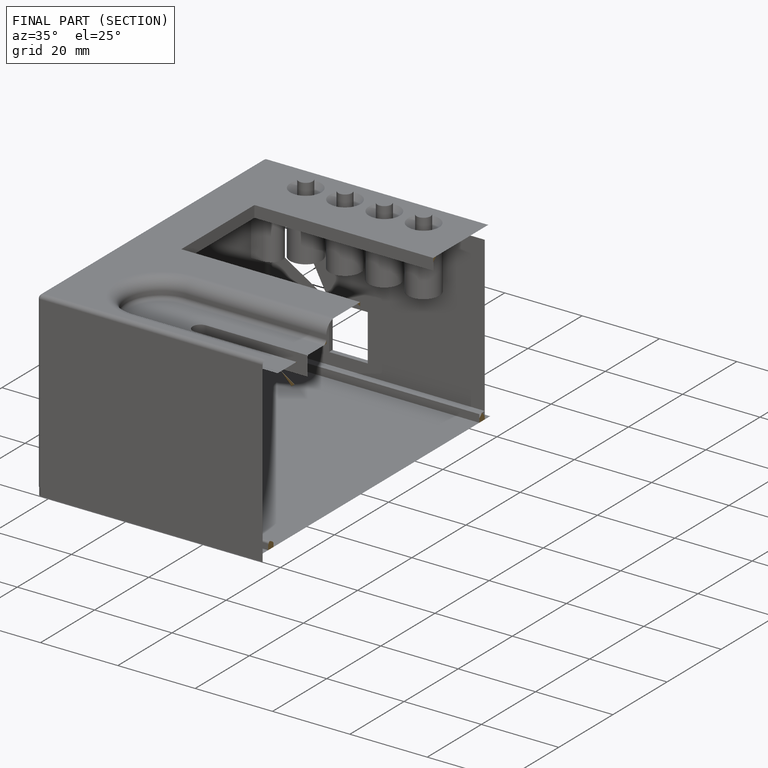
[diagram: finished part — half-section view (interior)]
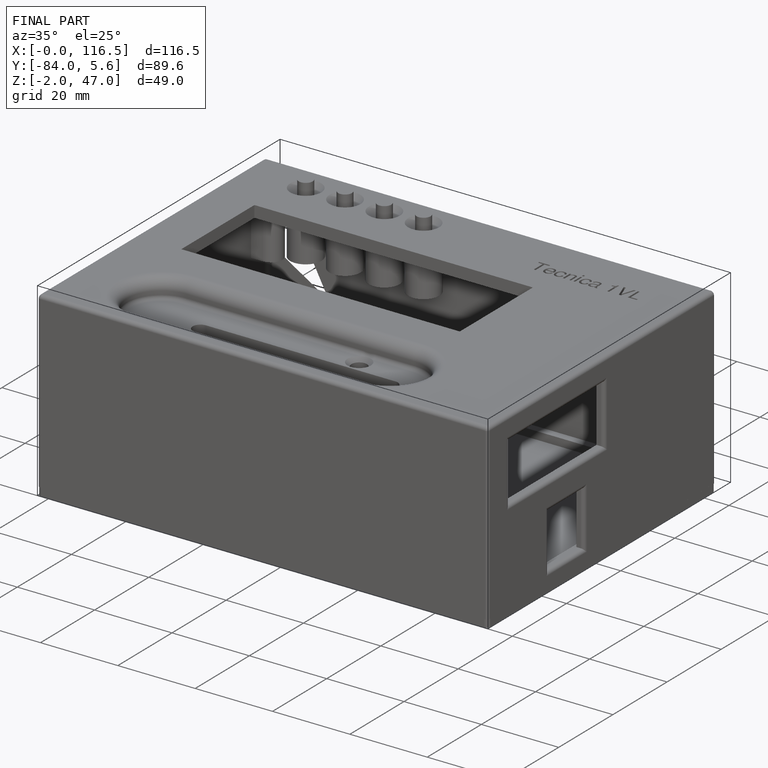
[diagram: finished part — iso view with bounding-box wireframe]
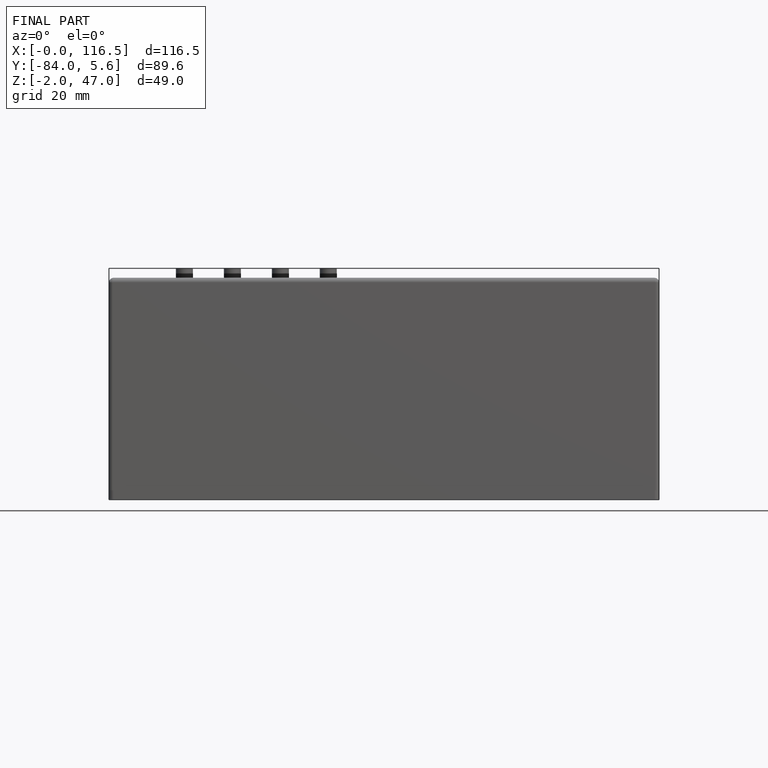
[diagram: finished part — front view with bounding-box wireframe]
